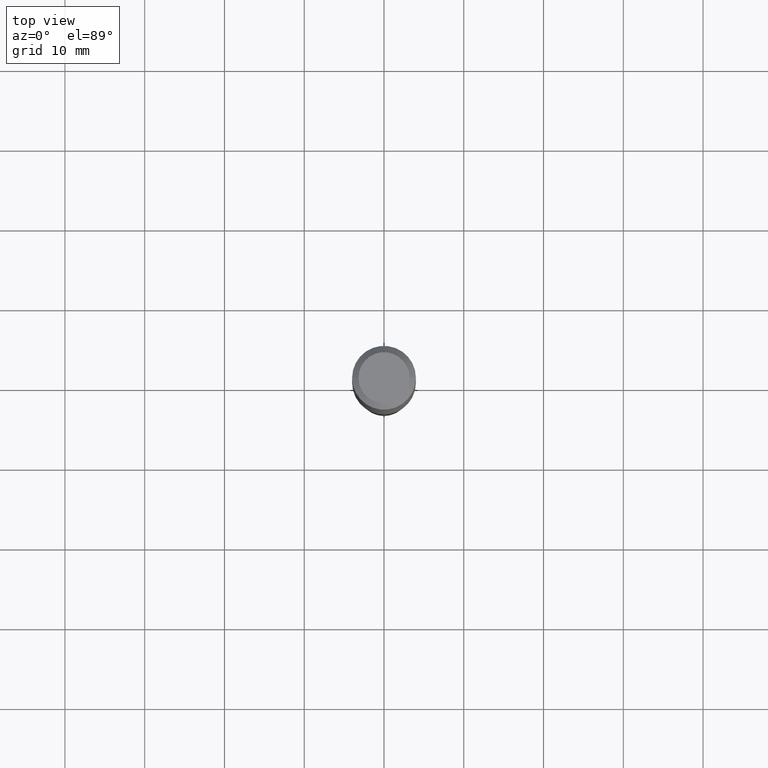
[diagram: clean part render]
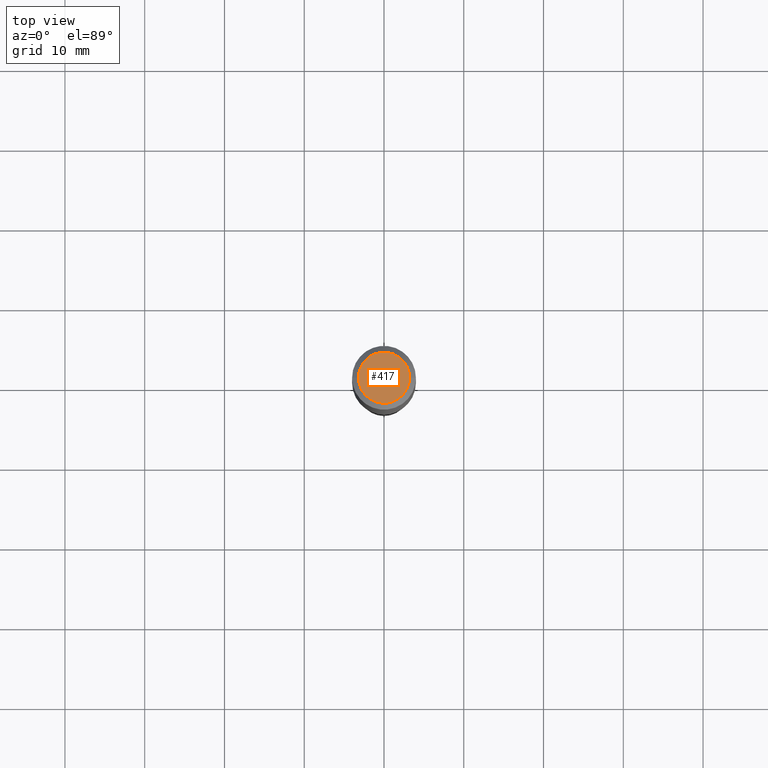
[diagram: same view with one face highlighted and labeled with its STEP entity id]
A machine part, top view. The second image highlights one B-rep face of the part: STEP entity #417.
In plain terms, the highlighted planar face has unit normal (0, -0, -1).
Its self-contained STEP definition (entity closure, byte-faithful):
#28 = CIRCLE ( 'NONE', #95, 0.1260000000000000009 ) ;
#53 = CARTESIAN_POINT ( 'NONE',  ( -0.1260000000000000009, 9.348441284752484904E-16, 3.860086710906114178E-18 ) ) ;
#65 = VERTEX_POINT ( 'NONE', #53 ) ;
#66 = CIRCLE ( 'NONE', #387, 0.1260000000000000009 ) ;
#73 = DIRECTION ( 'NONE',  ( 2.438088387897960049E-29, -3.491481338843145188E-15, -1.000000000000000000 ) ) ;
#77 = CARTESIAN_POINT ( 'NONE',  ( -4.719860820353100843E-47, 6.738710358733633822E-33, 1.930043355456229866E-18 ) ) ;
#95 = AXIS2_PLACEMENT_3D ( 'NONE', #381, #143, #106 ) ;
#102 = AXIS2_PLACEMENT_3D ( 'NONE', #77, #73, #485 ) ;
#106 = DIRECTION ( 'NONE',  ( 1.000000000000000000, -6.982962677686265922E-15, 4.876281427513067258E-29 ) ) ;
#125 = DIRECTION ( 'NONE',  ( 1.000000000000000000, -6.982962677686265922E-15, 4.876281427513067258E-29 ) ) ;
#126 = EDGE_CURVE ( 'NONE', #282, #65, #66, .T. ) ;
#143 = DIRECTION ( 'NONE',  ( -2.445468806185136597E-29, 3.491481338843145583E-15, 1.000000000000000000 ) ) ;
#146 = PLANE ( 'NONE',  #102 ) ;
#192 = DIRECTION ( 'NONE',  ( -2.445468806185136597E-29, 3.491481338843145583E-15, 1.000000000000000000 ) ) ;
#203 = EDGE_LOOP ( 'NONE', ( #215, #368 ) ) ;
#215 = ORIENTED_EDGE ( 'NONE', *, *, #334, .T. ) ;
#282 = VERTEX_POINT ( 'NONE', #364 ) ;
#288 = FACE_OUTER_BOUND ( 'NONE', #203, .T. ) ;
#334 = EDGE_CURVE ( 'NONE', #65, #282, #28, .T. ) ;
#355 = CARTESIAN_POINT ( 'NONE',  ( -9.439721640706201686E-47, 1.347742071746726764E-32, 3.860086710912459732E-18 ) ) ;
#364 = CARTESIAN_POINT ( 'NONE',  ( 0.1260000000000000009, -1.027466422270894443E-15, 3.860086710919128072E-18 ) ) ;
#368 = ORIENTED_EDGE ( 'NONE', *, *, #126, .T. ) ;
#381 = CARTESIAN_POINT ( 'NONE',  ( -9.439721640706201686E-47, 1.347742071746726764E-32, 3.860086710912459732E-18 ) ) ;
#387 = AXIS2_PLACEMENT_3D ( 'NONE', #355, #192, #125 ) ;
#417 = ADVANCED_FACE ( 'NONE', ( #288 ), #146, .F. ) ;
#485 = DIRECTION ( 'NONE',  ( -1.000000000000000000, 6.982962677686265922E-15, -4.876176775795935793E-29 ) ) ;